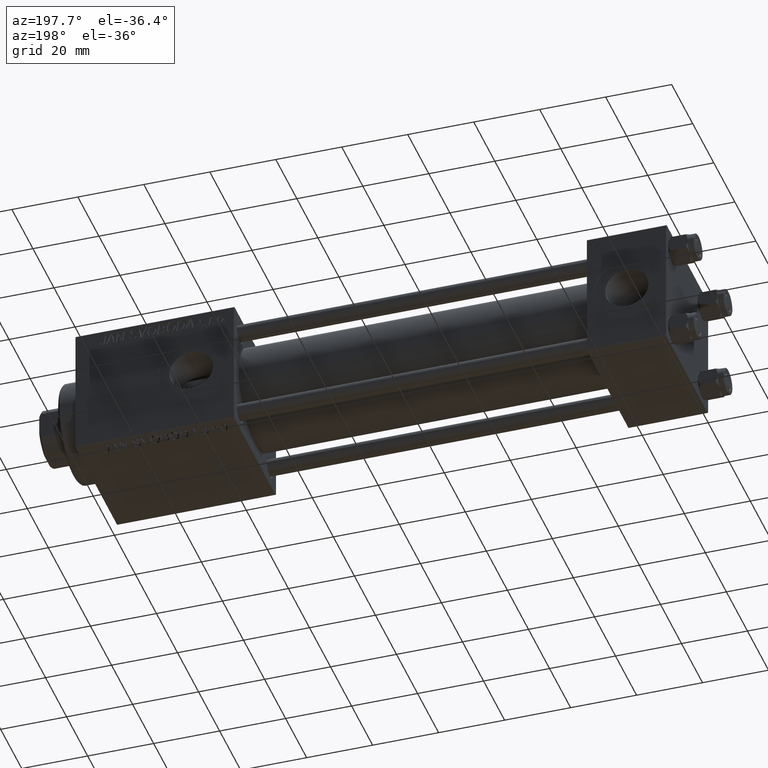
[diagram: clean part render]
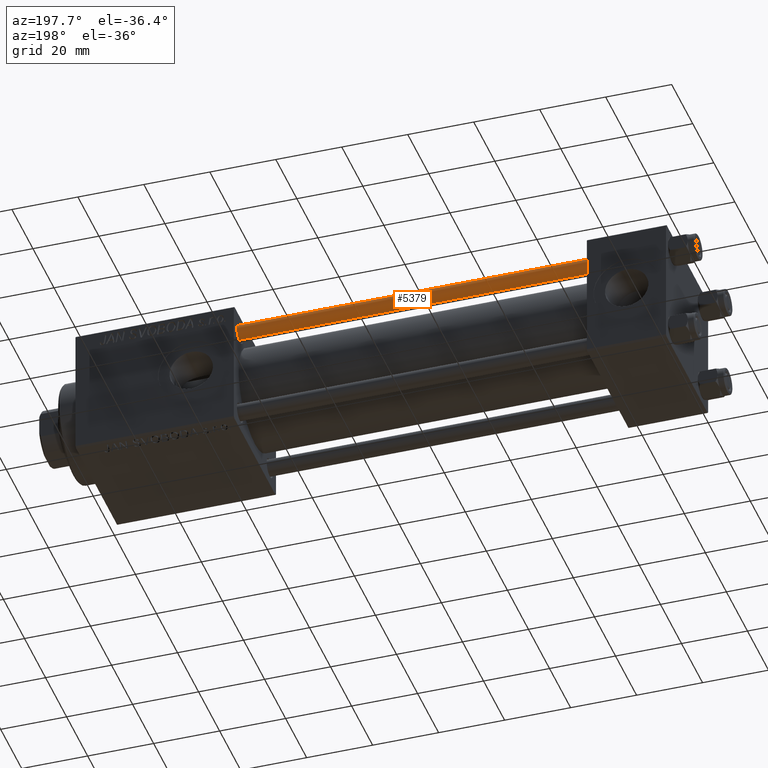
[diagram: same view with one face highlighted and labeled with its STEP entity id]
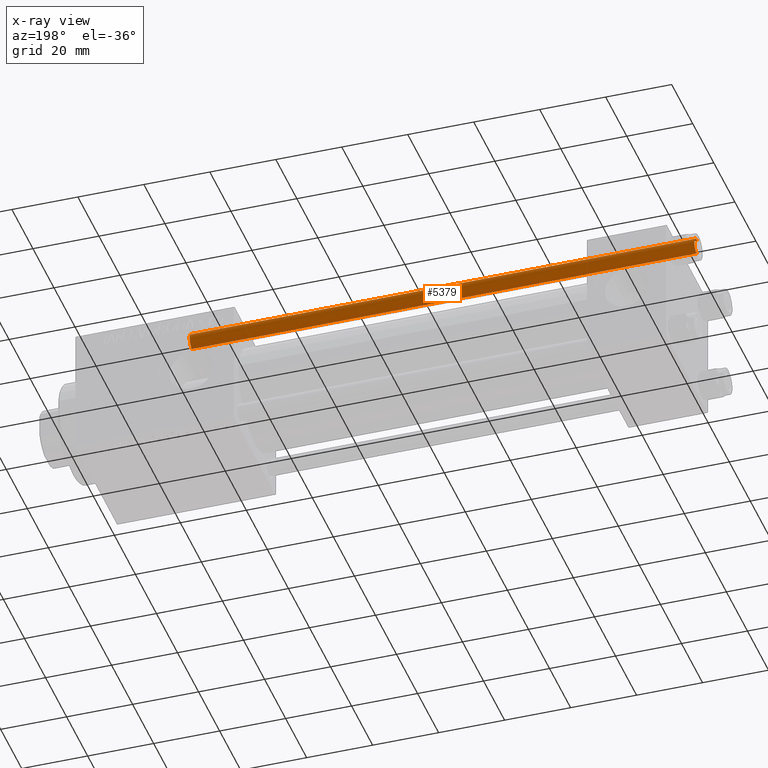
[diagram: x-ray of the same camera — body ghosted, the highlighted face saturated]
A machine part, auxiliary view. The second image highlights one B-rep face of the part: STEP entity #5379.
The next image is the same camera in x-ray: the body ghosted, the highlighted face saturated — about 0% of this face is hidden behind the body in this view.
In plain terms, the highlighted cylindrical surface (edge-blend (fillet) strip) has radius 2.5 mm, axis along (-1, 0, 0).
Its self-contained STEP definition (entity closure, byte-faithful):
#4464 = ORIENTED_EDGE ( 'NONE', *, *, #42576, .T. ) ;
#4909 = CARTESIAN_POINT ( 'NONE',  ( 0.000000000000000000, 0.000000000000000000, 0.5000000000000281997 ) ) ;
#5379 = ADVANCED_FACE ( 'NONE', ( #47912 ), #11738, .T. ) ;
#7788 = DIRECTION ( 'NONE',  ( -0.000000000000000000, -0.000000000000000000, -1.000000000000000000 ) ) ;
#11738 = CYLINDRICAL_SURFACE ( 'NONE', #34664, 2.500000000000000000 ) ;
#11824 = DIRECTION ( 'NONE',  ( -0.000000000000000000, -0.000000000000000000, -1.000000000000000000 ) ) ;
#13295 = VERTEX_POINT ( 'NONE', #22428 ) ;
#13337 = CIRCLE ( 'NONE', #41187, 2.500000000000000000 ) ;
#13750 = ORIENTED_EDGE ( 'NONE', *, *, #17452, .T. ) ;
#13786 = ORIENTED_EDGE ( 'NONE', *, *, #24563, .F. ) ;
#15476 = CARTESIAN_POINT ( 'NONE',  ( 0.000000000000000000, 0.000000000000000000, 153.5000000000000284 ) ) ;
#17452 = EDGE_CURVE ( 'NONE', #38469, #38817, #50952, .T. ) ;
#18993 = LINE ( 'NONE', #30879, #51712 ) ;
#22428 = CARTESIAN_POINT ( 'NONE',  ( -2.500000000000000000, 0.000000000000000000, 153.5000000000000284 ) ) ;
#22952 = DIRECTION ( 'NONE',  ( -0.000000000000000000, -0.000000000000000000, -1.000000000000000000 ) ) ;
#23902 = DIRECTION ( 'NONE',  ( -1.000000000000000000, 0.000000000000000000, 0.000000000000000000 ) ) ;
#24503 = ORIENTED_EDGE ( 'NONE', *, *, #50056, .T. ) ;
#24563 = EDGE_CURVE ( 'NONE', #13295, #38817, #18993, .T. ) ;
#30879 = CARTESIAN_POINT ( 'NONE',  ( -2.500000000000000000, 0.000000000000000000, 154.0000000000000000 ) ) ;
#31917 = LINE ( 'NONE', #39853, #45418 ) ;
#32386 = DIRECTION ( 'NONE',  ( 0.000000000000000000, 0.000000000000000000, -1.000000000000000000 ) ) ;
#34664 = AXIS2_PLACEMENT_3D ( 'NONE', #43973, #7788, #23902 ) ;
#36569 = CARTESIAN_POINT ( 'NONE',  ( 2.500000000000000000, 3.061616997868383141E-16, 153.5000000000000284 ) ) ;
#37182 = EDGE_LOOP ( 'NONE', ( #24503, #4464, #13750, #13786 ) ) ;
#38469 = VERTEX_POINT ( 'NONE', #42732 ) ;
#38817 = VERTEX_POINT ( 'NONE', #39509 ) ;
#39509 = CARTESIAN_POINT ( 'NONE',  ( -2.500000000000000000, 0.000000000000000000, 0.5000000000000281997 ) ) ;
#39853 = CARTESIAN_POINT ( 'NONE',  ( 2.500000000000000000, 3.061616997868383141E-16, 154.0000000000000000 ) ) ;
#40561 = DIRECTION ( 'NONE',  ( 1.000000000000000000, 0.000000000000000000, 0.000000000000000000 ) ) ;
#41187 = AXIS2_PLACEMENT_3D ( 'NONE', #15476, #32386, #40561 ) ;
#42576 = EDGE_CURVE ( 'NONE', #44199, #38469, #31917, .T. ) ;
#42732 = CARTESIAN_POINT ( 'NONE',  ( 2.500000000000000000, 3.061616997868383141E-16, 0.5000000000000281997 ) ) ;
#43973 = CARTESIAN_POINT ( 'NONE',  ( 0.000000000000000000, 0.000000000000000000, 154.0000000000000000 ) ) ;
#44199 = VERTEX_POINT ( 'NONE', #36569 ) ;
#45078 = DIRECTION ( 'NONE',  ( -0.000000000000000000, -0.000000000000000000, 1.000000000000000000 ) ) ;
#45418 = VECTOR ( 'NONE', #11824, 1000.000000000000000 ) ;
#47912 = FACE_OUTER_BOUND ( 'NONE', #37182, .T. ) ;
#49030 = DIRECTION ( 'NONE',  ( 1.000000000000000000, 0.000000000000000000, 0.000000000000000000 ) ) ;
#50056 = EDGE_CURVE ( 'NONE', #13295, #44199, #13337, .T. ) ;
#50098 = AXIS2_PLACEMENT_3D ( 'NONE', #4909, #45078, #49030 ) ;
#50952 = CIRCLE ( 'NONE', #50098, 2.500000000000000000 ) ;
#51712 = VECTOR ( 'NONE', #22952, 1000.000000000000000 ) ;